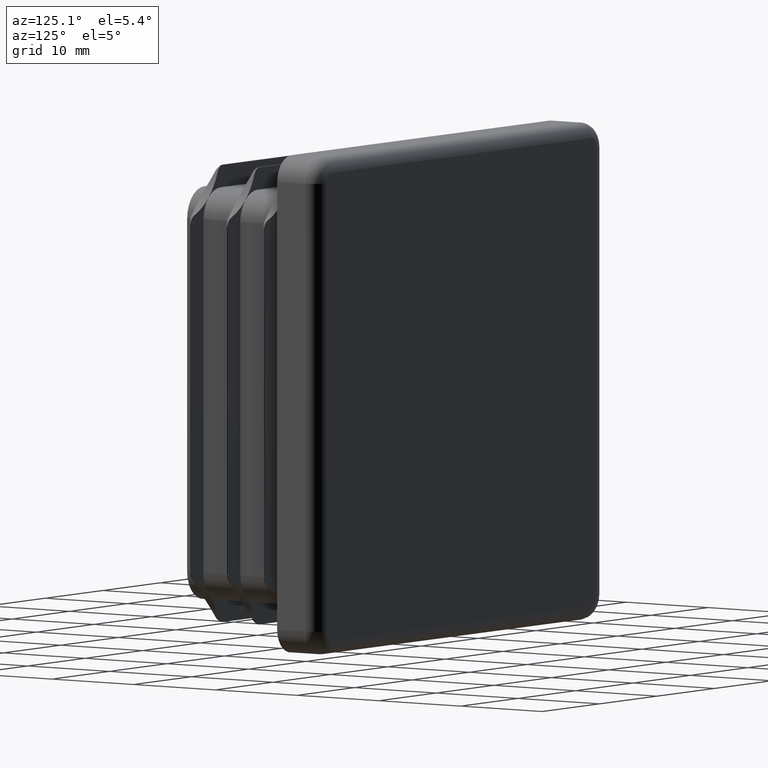
[diagram: clean part render]
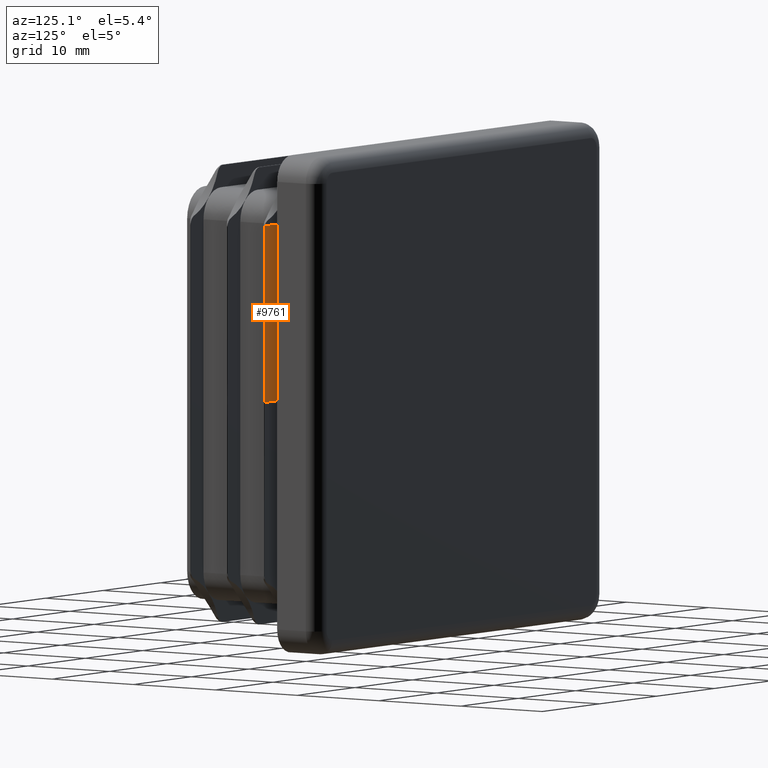
[diagram: same view with one face highlighted and labeled with its STEP entity id]
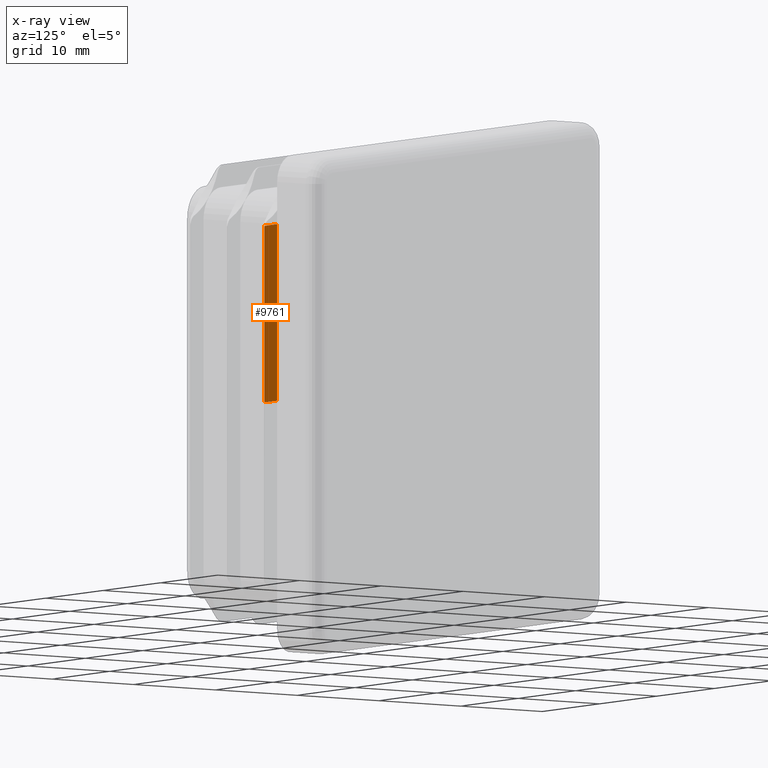
[diagram: x-ray of the same camera — body ghosted, the highlighted face saturated]
A machine part, auxiliary view. The second image highlights one B-rep face of the part: STEP entity #9761.
The next image is the same camera in x-ray: the body ghosted, the highlighted face saturated — about 0% of this face is hidden behind the body in this view.
In plain terms, the highlighted planar face has unit normal (0, -1, -0).
Its self-contained STEP definition (entity closure, byte-faithful):
#893 = DIRECTION ( 'NONE',  ( -0.000000000000000000, -1.000000000000000000, -0.000000000000000000 ) ) ;
#1534 = EDGE_CURVE ( 'NONE', #22121, #14983, #3525, .T. ) ;
#2545 = EDGE_CURVE ( 'NONE', #11138, #13209, #8751, .T. ) ;
#2841 = ORIENTED_EDGE ( 'NONE', *, *, #11817, .F. ) ;
#2901 = DIRECTION ( 'NONE',  ( 0.000000000000000000, -1.000000000000000000, -0.000000000000000000 ) ) ;
#3119 = PLANE ( 'NONE',  #5711 ) ;
#3525 = CIRCLE ( 'NONE', #4590, 1.000000000000000888 ) ;
#4266 = ORIENTED_EDGE ( 'NONE', *, *, #5295, .T. ) ;
#4590 = AXIS2_PLACEMENT_3D ( 'NONE', #11477, #893, #9774 ) ;
#5295 = EDGE_CURVE ( 'NONE', #22121, #11138, #18959, .T. ) ;
#5549 = ORIENTED_EDGE ( 'NONE', *, *, #1534, .F. ) ;
#5711 = AXIS2_PLACEMENT_3D ( 'NONE', #17061, #2901, #10011 ) ;
#5760 = ORIENTED_EDGE ( 'NONE', *, *, #2545, .T. ) ;
#8388 = CARTESIAN_POINT ( 'NONE',  ( 22.95000000000000639, -3.000000000000000888, 17.64722551352525315 ) ) ;
#8751 = LINE ( 'NONE', #22649, #12356 ) ;
#8948 = VECTOR ( 'NONE', #11794, 1000.000000000000000 ) ;
#9761 = ADVANCED_FACE ( 'NONE', ( #15260 ), #3119, .F. ) ;
#9774 = DIRECTION ( 'NONE',  ( 0.000000000000000000, 0.000000000000000000, -1.000000000000000000 ) ) ;
#9927 = CARTESIAN_POINT ( 'NONE',  ( 20.74999999999999645, -3.000000000000000888, 17.75000000000000000 ) ) ;
#10011 = DIRECTION ( 'NONE',  ( 0.000000000000000000, 0.000000000000000000, -1.000000000000000000 ) ) ;
#10206 = CARTESIAN_POINT ( 'NONE',  ( 22.95000000000000639, -3.000000000000000888, 17.75000000000000000 ) ) ;
#10367 = VECTOR ( 'NONE', #14346, 1000.000000000000000 ) ;
#11138 = VERTEX_POINT ( 'NONE', #13820 ) ;
#11477 = CARTESIAN_POINT ( 'NONE',  ( 22.00000000000010303, -3.000000000000000888, 17.33497561360502814 ) ) ;
#11671 = CARTESIAN_POINT ( 'NONE',  ( 20.74999999999999645, -3.000000000000000888, 0.000000000000000000 ) ) ;
#11794 = DIRECTION ( 'NONE',  ( 0.000000000000000000, 0.000000000000000000, -1.000000000000000000 ) ) ;
#11817 = EDGE_CURVE ( 'NONE', #14983, #14689, #17357, .T. ) ;
#12186 = DIRECTION ( 'NONE',  ( -1.000000000000000000, 0.000000000000000000, 0.000000000000000000 ) ) ;
#12356 = VECTOR ( 'NONE', #12186, 1000.000000000000000 ) ;
#12425 = EDGE_LOOP ( 'NONE', ( #5549, #4266, #5760, #21470, #2841 ) ) ;
#13209 = VERTEX_POINT ( 'NONE', #11671 ) ;
#13820 = CARTESIAN_POINT ( 'NONE',  ( 22.95000000000000639, -3.000000000000000888, 0.000000000000000000 ) ) ;
#14346 = DIRECTION ( 'NONE',  ( -1.000000000000000000, 0.000000000000000000, 0.000000000000000000 ) ) ;
#14689 = VERTEX_POINT ( 'NONE', #16352 ) ;
#14983 = VERTEX_POINT ( 'NONE', #17957 ) ;
#15260 = FACE_OUTER_BOUND ( 'NONE', #12425, .T. ) ;
#16352 = CARTESIAN_POINT ( 'NONE',  ( 20.74999999999999645, -3.000000000000000888, 17.75000000000000000 ) ) ;
#17061 = CARTESIAN_POINT ( 'NONE',  ( 20.74999999999999645, -3.000000000000000888, 17.75000000000000000 ) ) ;
#17357 = LINE ( 'NONE', #19706, #10367 ) ;
#17957 = CARTESIAN_POINT ( 'NONE',  ( 22.90981028720149482, -3.000000000000000888, 17.75000000000000000 ) ) ;
#18959 = LINE ( 'NONE', #10206, #20053 ) ;
#19464 = EDGE_CURVE ( 'NONE', #14689, #13209, #22240, .T. ) ;
#19706 = CARTESIAN_POINT ( 'NONE',  ( 20.74999999999999645, -3.000000000000000888, 17.75000000000000000 ) ) ;
#20053 = VECTOR ( 'NONE', #22306, 1000.000000000000000 ) ;
#21470 = ORIENTED_EDGE ( 'NONE', *, *, #19464, .F. ) ;
#22121 = VERTEX_POINT ( 'NONE', #8388 ) ;
#22240 = LINE ( 'NONE', #9927, #8948 ) ;
#22306 = DIRECTION ( 'NONE',  ( 0.000000000000000000, 0.000000000000000000, -1.000000000000000000 ) ) ;
#22649 = CARTESIAN_POINT ( 'NONE',  ( 20.74999999999999645, -3.000000000000000888, 0.000000000000000000 ) ) ;